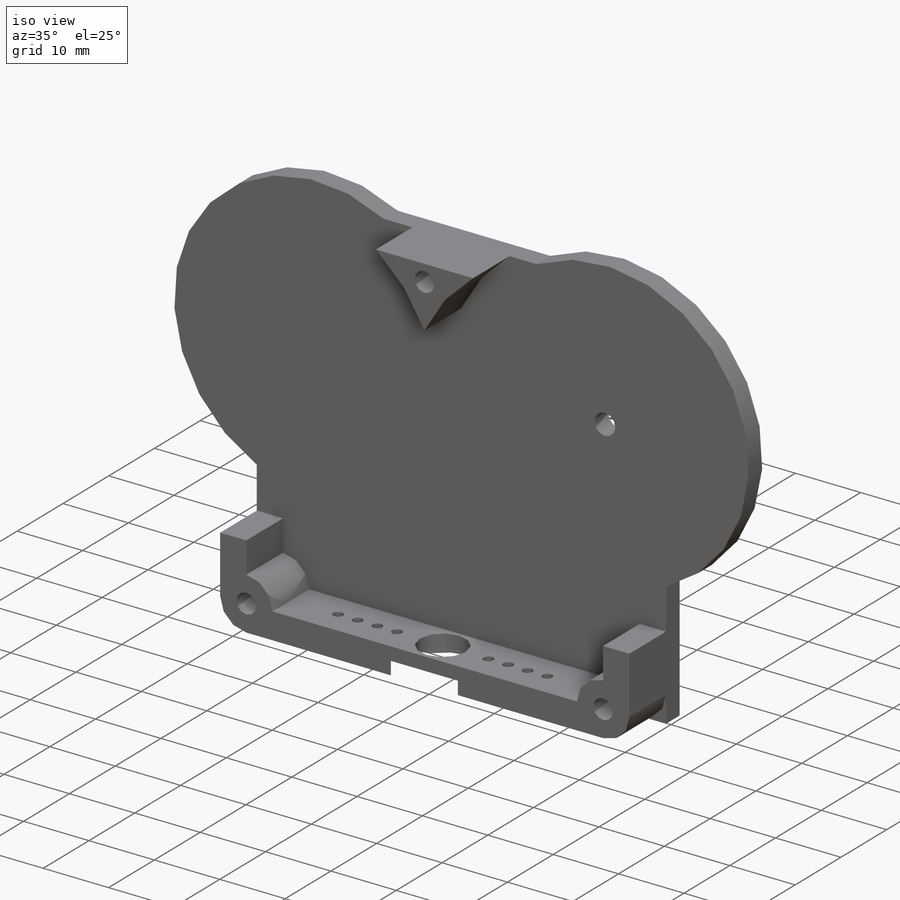
[diagram: iso view]
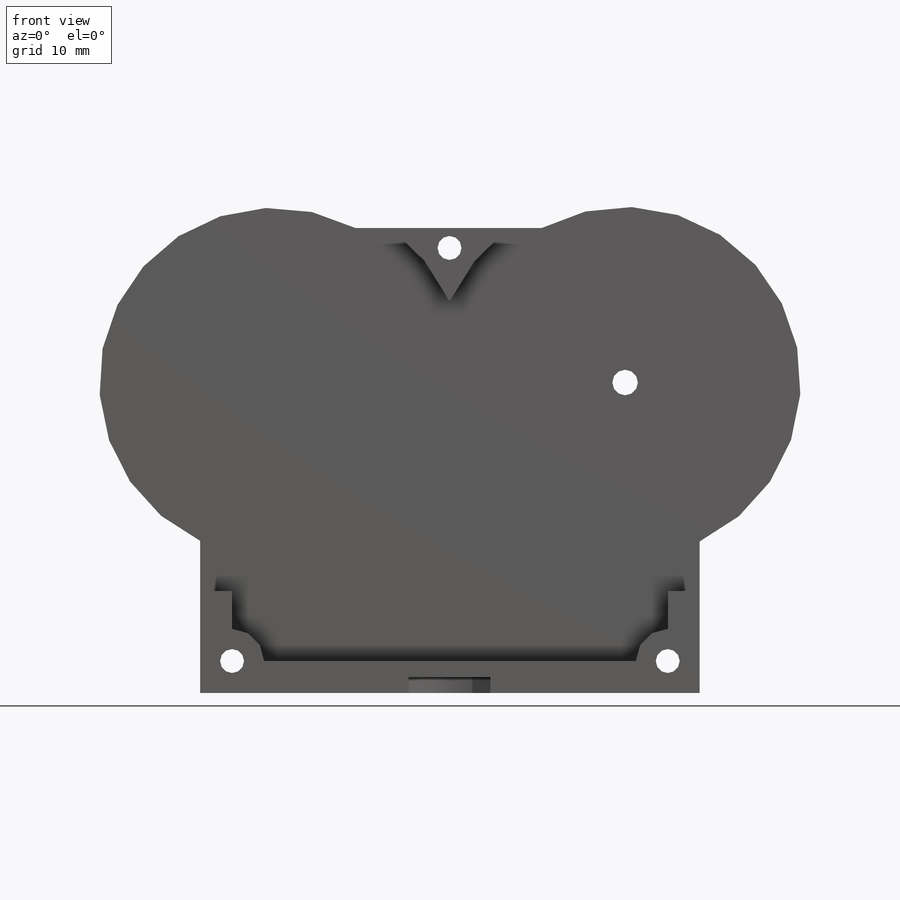
[diagram: front view]
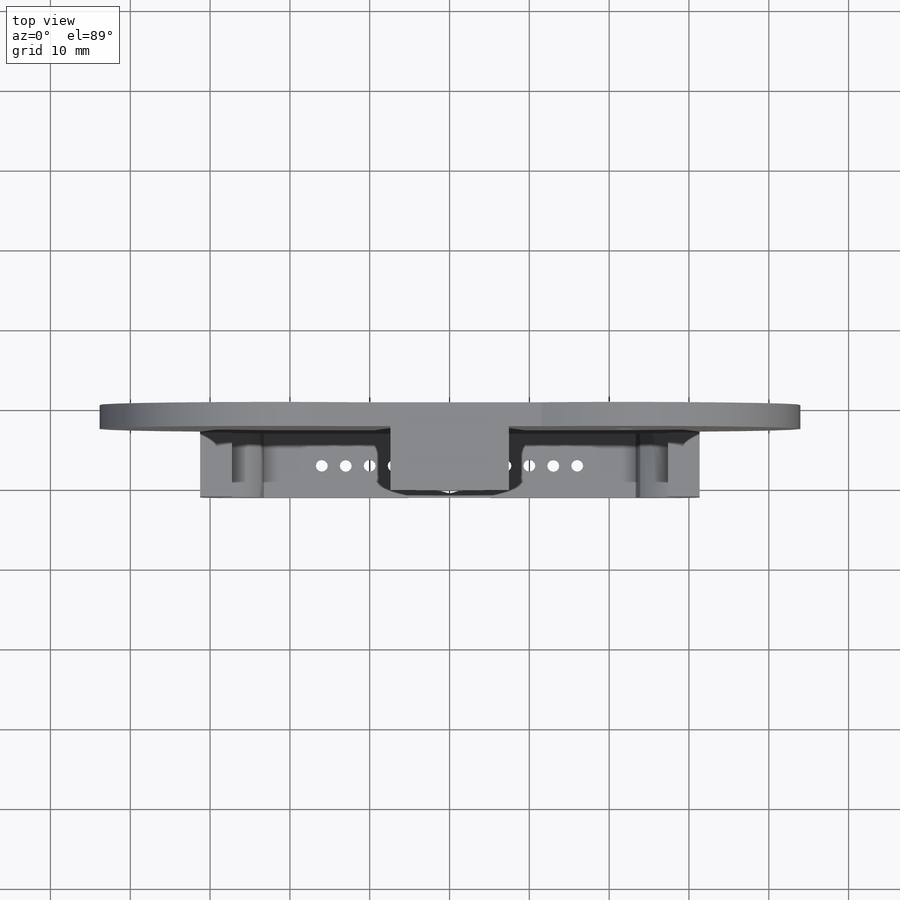
[diagram: top view]
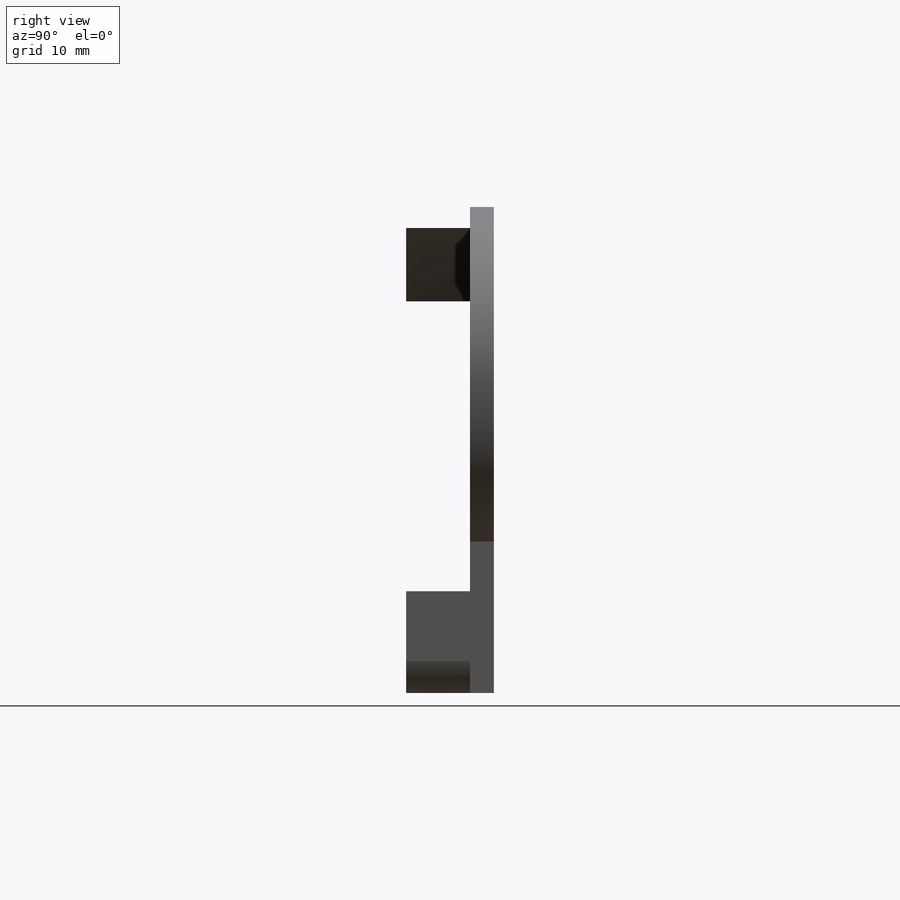
[diagram: right view]
SOLIDWORKS PART (.sldprt)
format: sldprt  version: not decoded by parser v0  size: 327,680 bytes
history: native  units: mm
features: sketch x7, cut_extrude x4, plane x3, extrude x3, material x1, chamfer x1 (+10 scaffold rows collapsed)
feature tree (29):
  scaffold x10  (default folders/planes/origin — collapsed)
  material  "Material <sin especificar>"
  plane  "Alzado"
  plane  "Planta"
  plane  "Vista lateral"
  sketch  "Croquis1"  dims[c1.D1=~3.759052mm c1.D3=~1.810064mm c2.D1=22.0mm c2.D2=22.0mm]
  extrude  "Base Tapa"  Depth=3mm
  sketch  "Croquis2"  dims[c1.D1=~21.888366mm c1.D2=~2.68967mm c2.D1=4.0mm]
  extrude  "Soportes tapa"  Depth=8mm
  sketch  "Croquis3"  dims[D1=4.5mm]
  cut_extrude  "Caja Horn servo exterior 1"  [1 undecoded]
  sketch  "Croquis4"  dims[D1=~2.993746mm]
  cut_extrude  "Caja Horn servo exterior 2"  Depth=2mm
  sketch  "Croquis5"
  cut_extrude  "Taladros Horn servo exterior "  [1 undecoded]
  sketch  "Croquis6"
  cut_extrude  "Taladros Tapa"  [1 undecoded]
  sketch  "Croquis7"
  extrude  "Rectificar taladro"  [1 undecoded]
  chamfer  "Chaflán taladros tapa"  Distance=1mm Angle=45deg
decode coverage: 8 of 15 modeling features carry decoded parameters
note: ~ marks probable driven/reference dimensions
note: 4 parameter values undecoded
summary: no parameter record found for 4 features
note: suppression state not decoded; provenance and decode notes live in map.json
